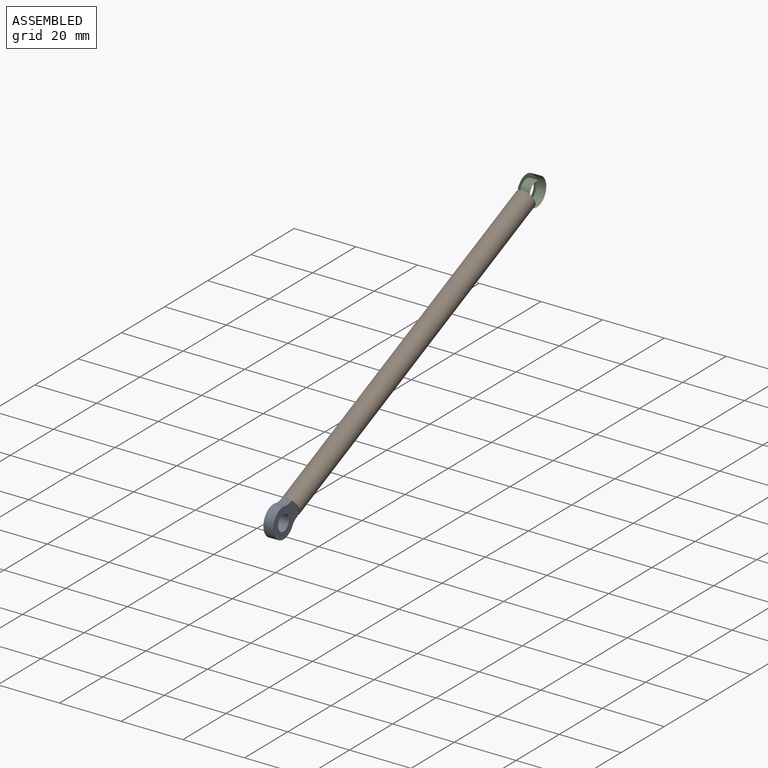
[diagram: assembled view]
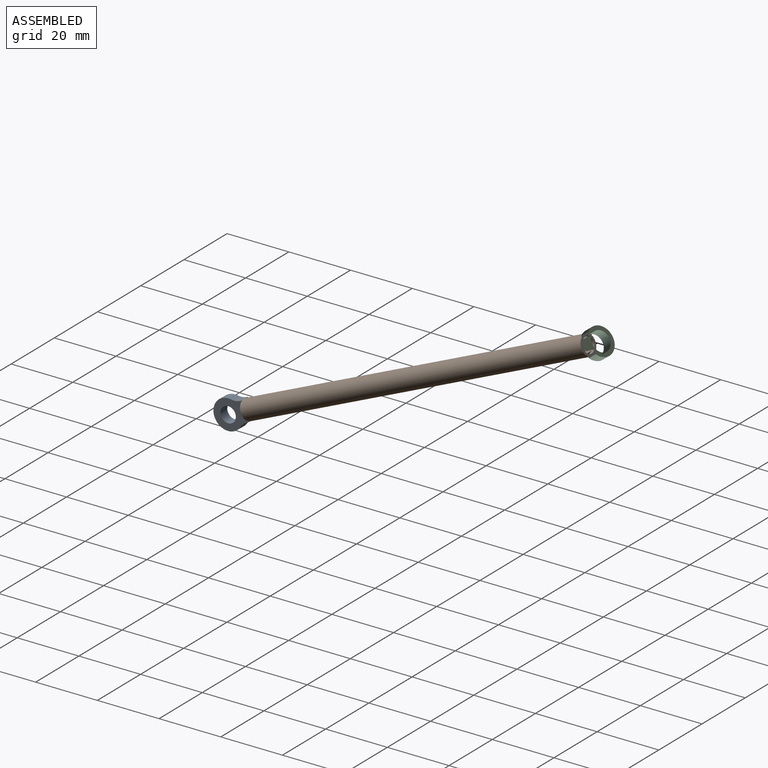
[diagram: assembled view, second angle]
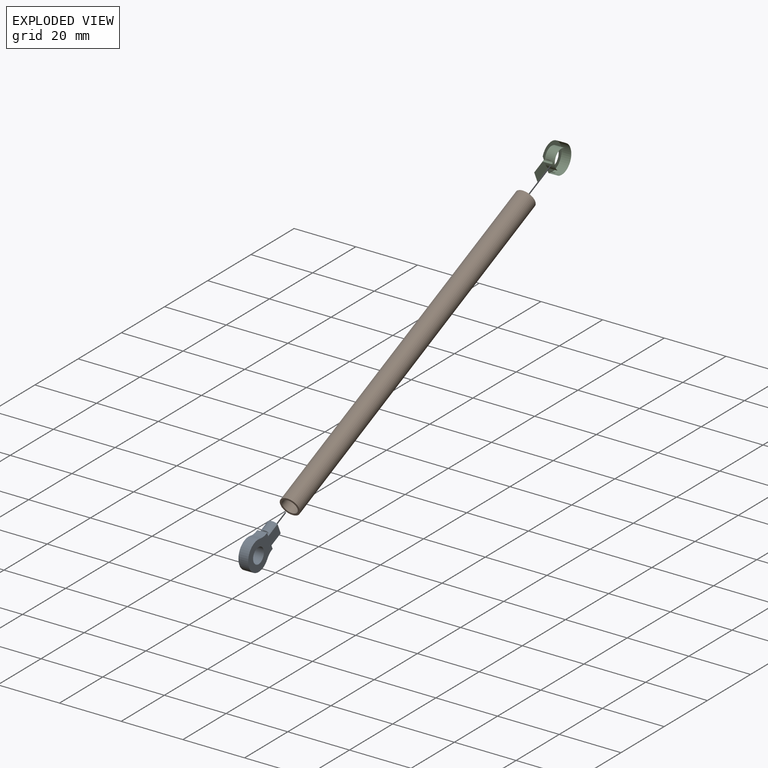
[diagram: exploded view]
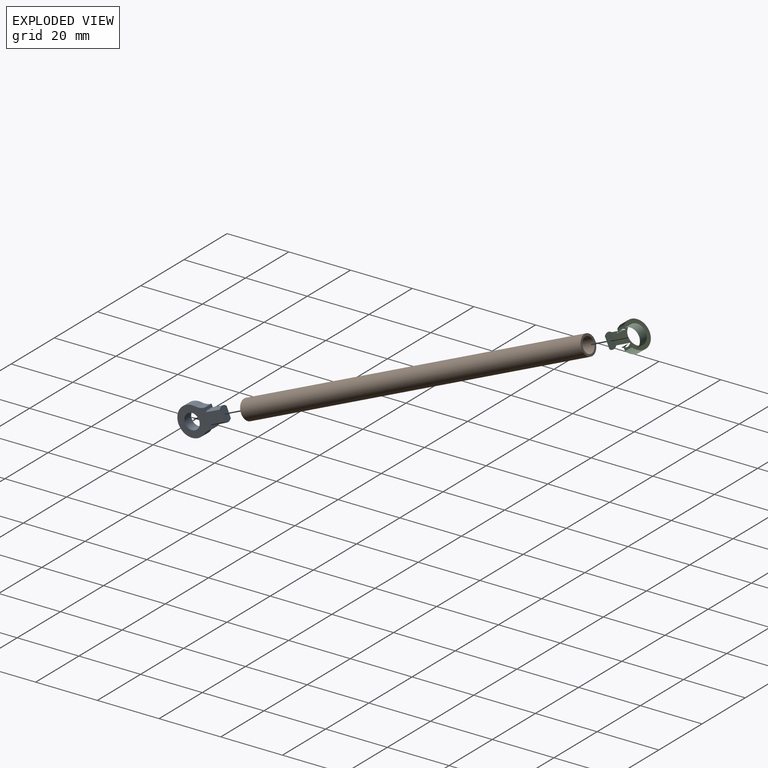
[diagram: exploded view, second angle]
ASSEMBLY  parts=3 mates=4
PART A: 19 faces, bbox 9.5x3.2x15.3 mm
  f0: plane 3.71x0.49mm, normal (-1,0,0), area 1.8mm2, adj f2,f10,f17,f18
  f1: plane 3.71x0.49mm, normal (1,0,0), area 1.8mm2, adj f3,f10,f15,f16
  f2: cylinder r=0.51mm len=2.97mm, axis (0,1,0), area 3.7mm2, adj f0,f9,f17,f18
  f3: cylinder r=0.51mm len=2.97mm, axis (0,1,0), area 3.7mm2, adj f1,f11,f15,f16
  f4: plane 15.27x9.53mm, normal (0,-1,0), area 77.3mm2, adj f5,f6,f7,f8,f9,f10,f11,f12
  f5: cylinder r=4.76mm len=3.18mm, axis (0,1,0), area 9.1mm2, adj f4,f6,f13,f14
  f6: cylinder r=4.76mm len=9.53mm, axis (0,1,0), area 65.8mm2, adj f4,f5,f7,f14
  f7: cylinder r=4.76mm len=3.18mm, axis (0,1,0), area 9.1mm2, adj f4,f6,f8,f14
  f8: plane 3.18x0.36mm, normal (-1,0,0), area 1.2mm2, adj f4,f7,f9,f14
  f9: plane 3.18x1.31mm, normal (0,0,-1), area 2.8mm2, adj f2,f4,f8,f14,f17,f18
  f10: plane 4.72x3.18mm, normal (0,0,-1), area 13.9mm2, adj f0,f1,f4,f14,f15,f16,f17,f18
  f11: plane 3.18x1.31mm, normal (0,0,-1), area 2.8mm2, adj f3,f4,f13,f14,f15,f16
  f12: cylinder r=2.5mm len=5mm, axis (0,1,0), area 49.9mm2, adj f4,f14
  f13: plane 3.18x0.36mm, normal (1,0,0), area 1.2mm2, adj f4,f5,f11,f14
  f14: plane 15.27x9.53mm, normal (0,1,0), area 77.3mm2, adj f5,f6,f7,f8,f9,f10,f11,f12
  f15: cylinder r=2.37mm len=4.72mm, axis (0,0,-1), area 5.9mm2, adj f1,f3,f4,f10,f11
  f16: cylinder r=2.37mm len=4.72mm, axis (0,0,-1), area 5.9mm2, adj f1,f3,f10,f11,f14
  f17: cylinder r=2.37mm len=4.72mm, axis (0,0,-1), area 5.9mm2, adj f0,f2,f4,f9,f10
  f18: cylinder r=2.37mm len=4.72mm, axis (0,0,-1), area 5.9mm2, adj f0,f2,f9,f10,f14
PART B: 4 faces, bbox 6.4x120x6.4 mm
  f0: cylinder r=2.46mm len=120mm, axis (0,1,0), area 1857.7mm2, adj f2,f3
  f1: cylinder r=3.17mm len=120mm, axis (0,1,0), area 2393.9mm2, adj f2,f3
  f2: plane 6.35x6.35mm, normal (0,-1,0), area 12.6mm2, adj f0,f1
  f3: plane 6.35x6.35mm, normal (0,1,0), area 12.6mm2, adj f0,f1
PART C: 11 faces, bbox 9x3.2x12.6 mm
  f0: cylinder r=0.51mm len=3mm, axis (0,1,0), area 3.7mm2, adj f1
  f1: cylinder r=2.46mm len=4.93mm, axis (0,0,-1), area 14.2mm2, adj f0,f2,f8,f9,f10
  f2: plane 12.59x8.98mm, normal (0,-1,0), area 44.5mm2, adj f1,f3,f5,f6,f7,f8,f10
  f3: cylinder r=2.46mm len=4.93mm, axis (0,0,-1), area 14.2mm2, adj f2,f4,f5,f8,f9
  f4: cylinder r=0.51mm len=3mm, axis (0,1,0), area 3.7mm2, adj f3
  f5: plane 3.18x1.29mm, normal (0,0,-1), area 2.8mm2, adj f2,f3,f6,f9
  f6: cylinder r=4.49mm len=8.98mm, axis (0,1,0), area 67.2mm2, adj f2,f5,f9,f10
  f7: cylinder r=3.17mm len=6.35mm, axis (0,1,0), area 63.3mm2, adj f2,f9
  f8: plane 4.93x3.18mm, normal (0,0,-1), area 14.5mm2, adj f1,f2,f3,f9
  f9: plane 12.59x8.98mm, normal (0,1,0), area 44.5mm2, adj f1,f3,f5,f6,f7,f8,f10
  f10: plane 3.18x1.29mm, normal (0,0,-1), area 2.8mm2, adj f1,f2,f6,f9
PLACE A rot(axis=(0.64,-0.64,0.42),134.9deg) t=(506.32,-283.13,-506.32)mm
PLACE B rot(axis=(-0.3,-0.2,0.93),173.1deg) t=(462.6,-250.74,-457.89)mm
PLACE C rot(axis=(-0.47,-0.48,-0.74),107.8deg) t=(508.5,-78.39,-429.25)mm
MATE planar C.f5 <-> B.f0  axis (0.01,-0.92,-0.4) through (505.23,-135.04,-422.4)mm
MATE planar B.f0 <-> A.f9  axis (0.01,-0.92,-0.4) through (507.47,-243.97,-472.78)mm
MATE cylindrical A.f15 <-> B.f0  axis (-0.01,0.92,0.4) through (507.46,-241.82,-471.84)mm
MATE cylindrical C.f1 <-> B.f0  axis (0.01,-0.92,-0.4) through (506.86,-136.27,-425.68)mm
